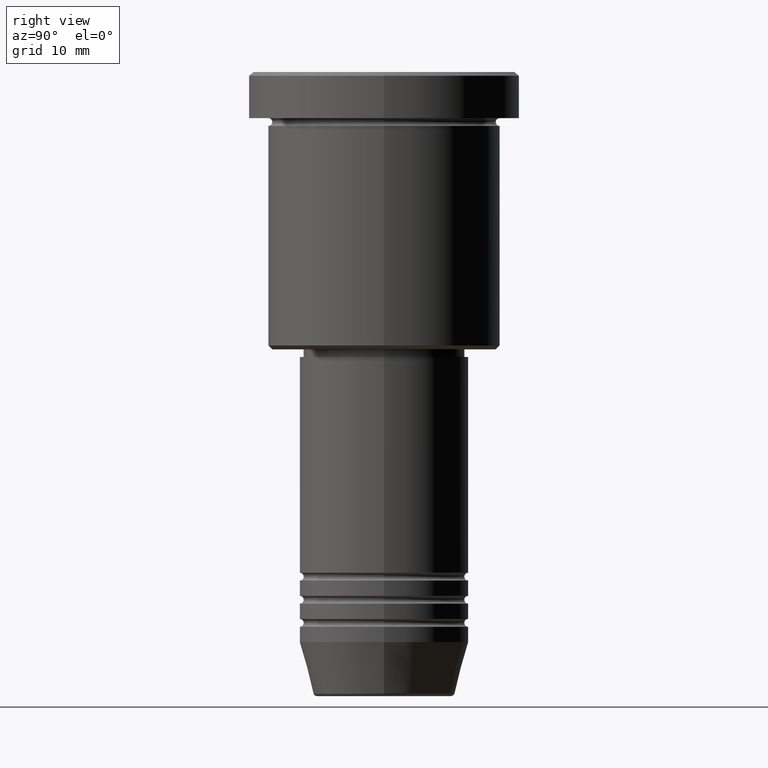
[diagram: clean part render]
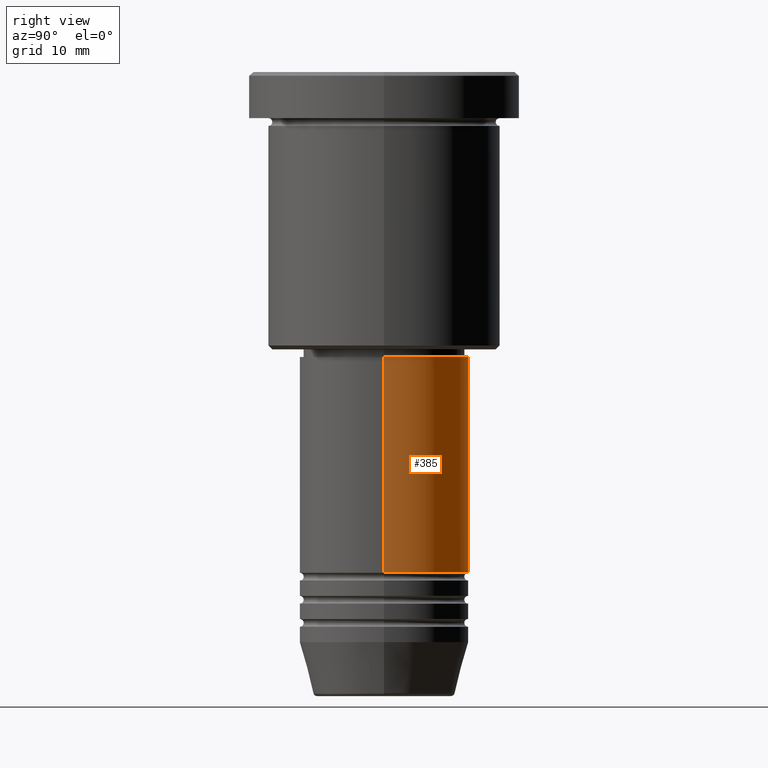
[diagram: same view with one face highlighted and labeled with its STEP entity id]
A machine part, right view. The second image highlights one B-rep face of the part: STEP entity #385.
In plain terms, the highlighted cylindrical surface (partial cylindrical patch) has radius 11 mm, axis along (-0, -0, 1).
Its self-contained STEP definition (entity closure, byte-faithful):
#55 = LINE ( 'NONE', #1140, #1036 ) ;
#70 = EDGE_CURVE ( 'NONE', #887, #600, #689, .T. ) ;
#99 = CARTESIAN_POINT ( 'NONE',  ( 0.000000000000000000, 0.000000000000000000, 0.000000000000000000 ) ) ;
#110 = DIRECTION ( 'NONE',  ( -0.000000000000000000, -0.000000000000000000, 1.000000000000000000 ) ) ;
#134 = ORIENTED_EDGE ( 'NONE', *, *, #640, .F. ) ;
#143 = CIRCLE ( 'NONE', #892, 11.00000000000000000 ) ;
#212 = EDGE_CURVE ( 'NONE', #785, #753, #55, .T. ) ;
#265 = CARTESIAN_POINT ( 'NONE',  ( 0.000000000000000000, 0.000000000000000000, -37.00000000000000711 ) ) ;
#266 = EDGE_CURVE ( 'NONE', #785, #887, #487, .T. ) ;
#301 = CARTESIAN_POINT ( 'NONE',  ( 11.00000000000000000, 0.000000000000000000, -64.99999999999997158 ) ) ;
#312 = ORIENTED_EDGE ( 'NONE', *, *, #212, .F. ) ;
#340 = DIRECTION ( 'NONE',  ( 1.000000000000000000, 0.000000000000000000, 0.000000000000000000 ) ) ;
#385 = ADVANCED_FACE ( 'NONE', ( #461 ), #654, .T. ) ;
#430 = DIRECTION ( 'NONE',  ( -0.000000000000000000, -0.000000000000000000, 1.000000000000000000 ) ) ;
#436 = VECTOR ( 'NONE', #110, 1000.000000000000000 ) ;
#443 = DIRECTION ( 'NONE',  ( -0.000000000000000000, -0.000000000000000000, 1.000000000000000000 ) ) ;
#461 = FACE_OUTER_BOUND ( 'NONE', #1132, .T. ) ;
#487 = CIRCLE ( 'NONE', #909, 11.00000000000000000 ) ;
#503 = ORIENTED_EDGE ( 'NONE', *, *, #70, .T. ) ;
#600 = VERTEX_POINT ( 'NONE', #989 ) ;
#640 = EDGE_CURVE ( 'NONE', #753, #600, #143, .T. ) ;
#654 = CYLINDRICAL_SURFACE ( 'NONE', #927, 11.00000000000000000 ) ;
#689 = LINE ( 'NONE', #937, #436 ) ;
#704 = CARTESIAN_POINT ( 'NONE',  ( 0.000000000000000000, 0.000000000000000000, -64.99999999999997158 ) ) ;
#739 = DIRECTION ( 'NONE',  ( 1.000000000000000000, 0.000000000000000000, 0.000000000000000000 ) ) ;
#753 = VERTEX_POINT ( 'NONE', #1117 ) ;
#785 = VERTEX_POINT ( 'NONE', #301 ) ;
#809 = DIRECTION ( 'NONE',  ( 1.000000000000000000, 0.000000000000000000, 0.000000000000000000 ) ) ;
#867 = CARTESIAN_POINT ( 'NONE',  ( -11.00000000000000000, 1.347111479062088405E-15, -64.99999999999997158 ) ) ;
#887 = VERTEX_POINT ( 'NONE', #867 ) ;
#892 = AXIS2_PLACEMENT_3D ( 'NONE', #265, #1150, #340 ) ;
#909 = AXIS2_PLACEMENT_3D ( 'NONE', #704, #443, #809 ) ;
#927 = AXIS2_PLACEMENT_3D ( 'NONE', #99, #1181, #739 ) ;
#937 = CARTESIAN_POINT ( 'NONE',  ( -11.00000000000000000, 1.347111479062088405E-15, 0.000000000000000000 ) ) ;
#989 = CARTESIAN_POINT ( 'NONE',  ( -11.00000000000000000, 1.347111479062088405E-15, -37.00000000000000711 ) ) ;
#1036 = VECTOR ( 'NONE', #430, 1000.000000000000000 ) ;
#1064 = ORIENTED_EDGE ( 'NONE', *, *, #266, .T. ) ;
#1117 = CARTESIAN_POINT ( 'NONE',  ( 11.00000000000000000, 0.000000000000000000, -37.00000000000000711 ) ) ;
#1132 = EDGE_LOOP ( 'NONE', ( #1064, #503, #134, #312 ) ) ;
#1140 = CARTESIAN_POINT ( 'NONE',  ( 11.00000000000000000, 0.000000000000000000, 0.000000000000000000 ) ) ;
#1150 = DIRECTION ( 'NONE',  ( -0.000000000000000000, -0.000000000000000000, 1.000000000000000000 ) ) ;
#1181 = DIRECTION ( 'NONE',  ( -0.000000000000000000, -0.000000000000000000, 1.000000000000000000 ) ) ;